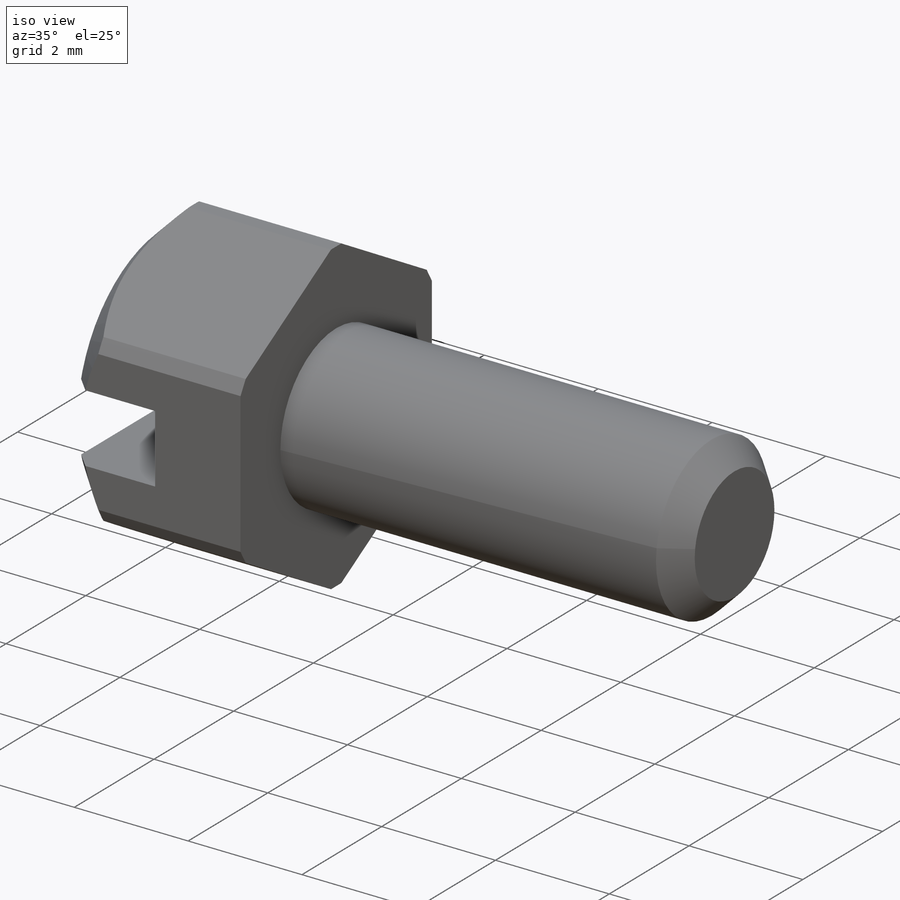
[diagram: iso view]
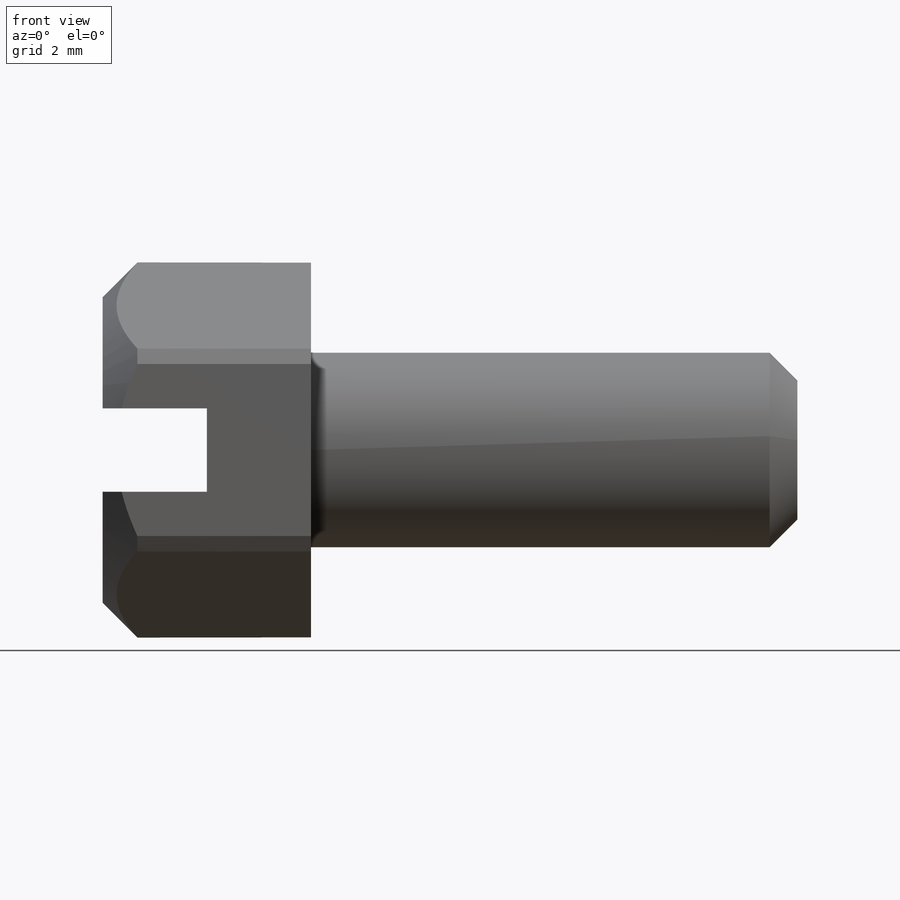
[diagram: front view]
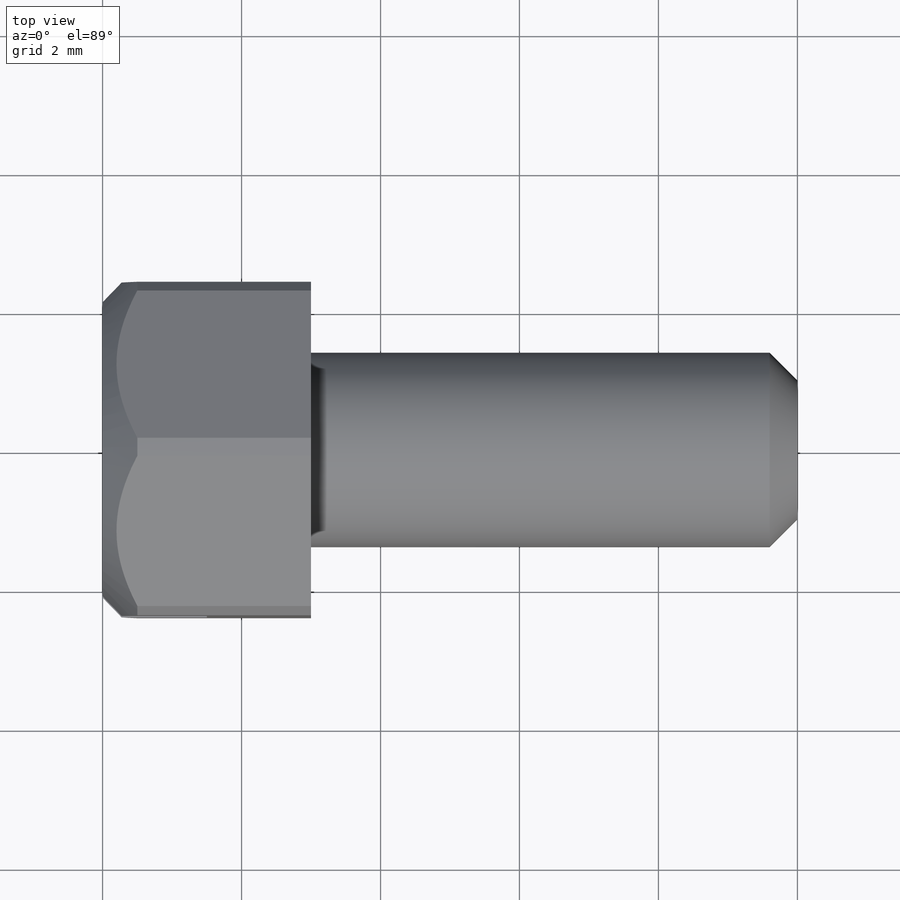
[diagram: top view]
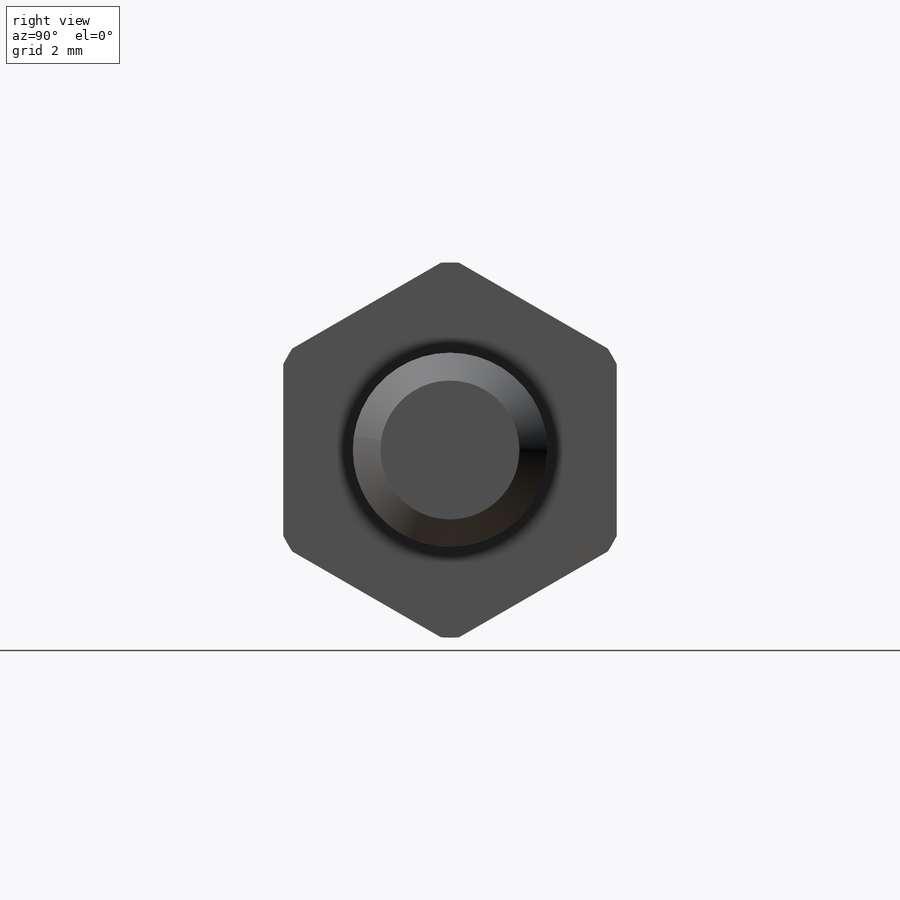
[diagram: right view]
SOLIDWORKS PART (.sldprt)
format: sldprt  version: not decoded by parser v0  size: 223,744 bytes
history: native  units: mm
features: plane x3, sketch x3, cut_extrude x2, material x1, revolve x1, thread x1, chamfer x1 (+14 scaffold rows collapsed)
feature tree (26):
  scaffold x14  (default folders/planes/origin — collapsed)
  material  "Литая легированная сталь"
  plane  "Спереди"
  plane  "Сверху"
  plane  "Справа"
  sketch  "Эскиз1"  dims[c1.D1=1.45mm c1.D2=2.7mm c1.D3=3.0mm c1.D4=10.0mm c2.D1=2.8mm c2.D2=5.4mm c2.D5=0.4mm c2.D6=45.0deg]
  revolve  "Повернуть1"  [1 undecoded]
  thread  "Условное изображение резьбы1"  Diameter=2.08788mm  [1 undecoded]
  sketch  "Эскиз2"  dims[D1=1.2mm]
  cut_extrude  "Вырез-Вытянуть2"  Depth=1.5mm
  chamfer  "Фаска1"  Distance=0.5mm Angle=45deg
  sketch  "Эскиз4"  dims[D1=4.8mm]
  cut_extrude  "Вырез-Вытянуть3"  [1 undecoded]
decode coverage: 6 of 8 modeling features carry decoded parameters
note: 3 parameter values undecoded
note: suppression state not decoded; provenance and decode notes live in map.json
